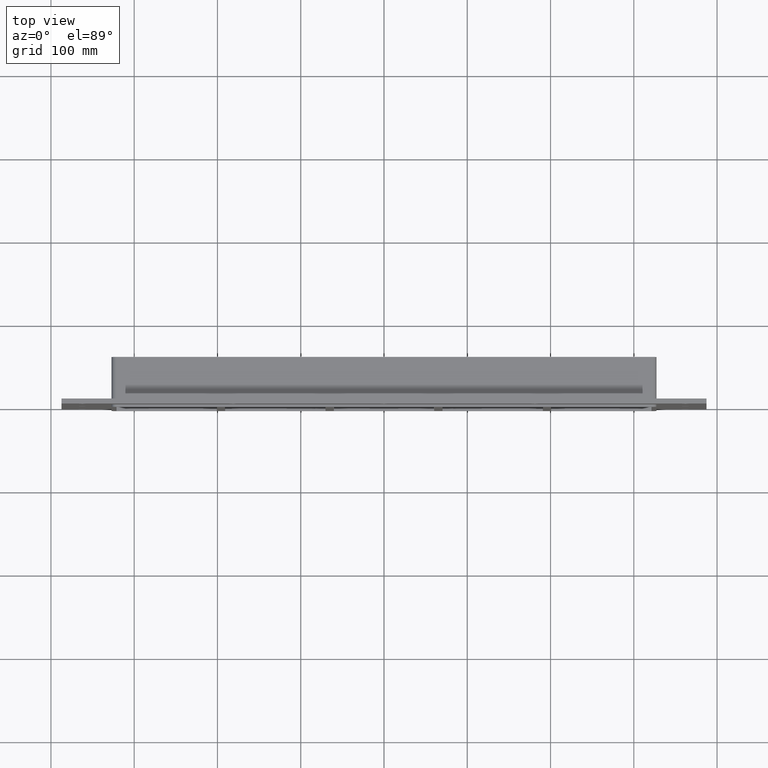
[diagram: clean part render]
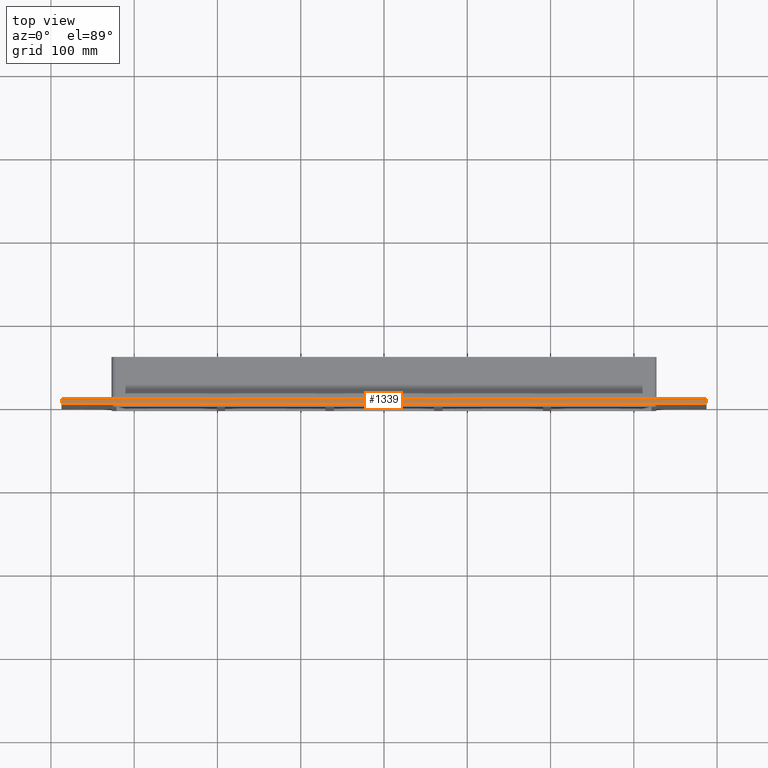
[diagram: same view with one face highlighted and labeled with its STEP entity id]
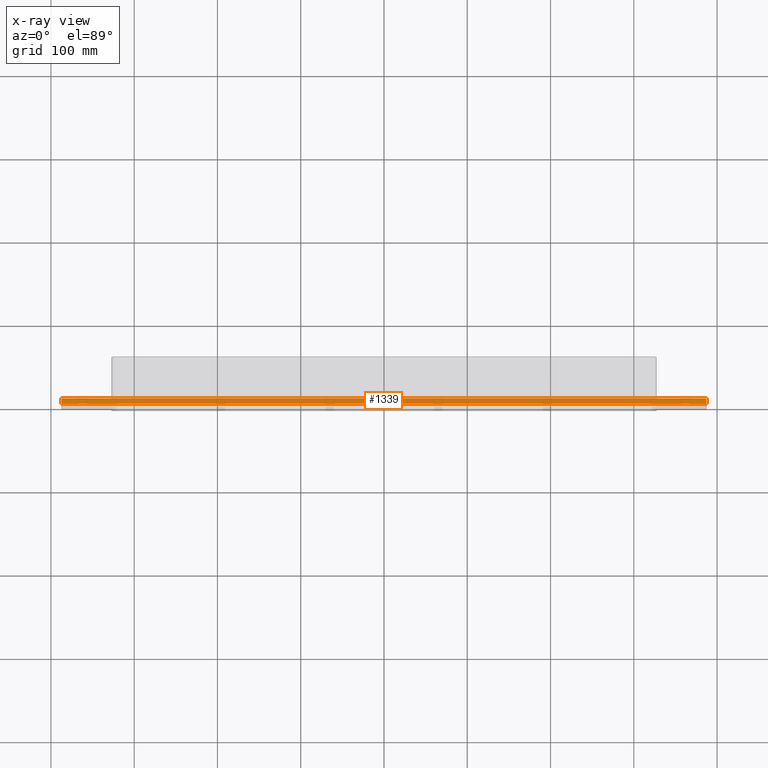
[diagram: x-ray of the same camera — body ghosted, the highlighted face saturated]
A machine part, top view. The second image highlights one B-rep face of the part: STEP entity #1339.
The next image is the same camera in x-ray: the body ghosted, the highlighted face saturated — about 0% of this face is hidden behind the body in this view.
In plain terms, the highlighted planar face has unit normal (0, 0, 1).
Its self-contained STEP definition (entity closure, byte-faithful):
#985=CARTESIAN_POINT('',(-387.25,6.000000000000001,205.00000000000003));
#986=VERTEX_POINT('',#985);
#987=CARTESIAN_POINT('',(387.25,6.000000000000001,205.00000000000003));
#988=VERTEX_POINT('',#987);
#989=CARTESIAN_POINT('',(-387.25,6.000000000000001,205.00000000000003));
#990=DIRECTION('',(1.0,0.0,0.0));
#991=VECTOR('',#990,774.5);
#992=LINE('',#989,#991);
#993=EDGE_CURVE('',#986,#988,#992,.T.);
#1131=CARTESIAN_POINT('',(-387.25,0.0,205.00000000000003));
#1132=VERTEX_POINT('',#1131);
#1133=CARTESIAN_POINT('',(387.25,0.0,205.00000000000003));
#1134=VERTEX_POINT('',#1133);
#1135=CARTESIAN_POINT('',(-387.25,0.0,205.00000000000003));
#1136=DIRECTION('',(1.0,0.0,0.0));
#1137=VECTOR('',#1136,774.5);
#1138=LINE('',#1135,#1137);
#1139=EDGE_CURVE('',#1132,#1134,#1138,.T.);
#1278=CARTESIAN_POINT('',(-387.25,0.0,205.00000000000003));
#1279=DIRECTION('',(0.0,1.0,0.0));
#1280=VECTOR('',#1279,6.000000000000001);
#1281=LINE('',#1278,#1280);
#1282=EDGE_CURVE('',#1132,#986,#1281,.T.);
#1319=CARTESIAN_POINT('',(387.25,0.0,205.00000000000003));
#1320=DIRECTION('',(0.0,1.0,0.0));
#1321=VECTOR('',#1320,6.000000000000001);
#1322=LINE('',#1319,#1321);
#1323=EDGE_CURVE('',#1134,#988,#1322,.T.);
#1328=CARTESIAN_POINT('',(-387.25,0.0,205.00000000000003));
#1329=DIRECTION('',(0.0,0.0,1.0));
#1330=DIRECTION('',(1.0,0.0,0.0));
#1331=AXIS2_PLACEMENT_3D('',#1328,#1329,#1330);
#1332=PLANE('',#1331);
#1333=ORIENTED_EDGE('',*,*,#1139,.T.);
#1334=ORIENTED_EDGE('',*,*,#1323,.T.);
#1335=ORIENTED_EDGE('',*,*,#993,.F.);
#1336=ORIENTED_EDGE('',*,*,#1282,.F.);
#1337=EDGE_LOOP('',(#1333,#1334,#1335,#1336));
#1338=FACE_OUTER_BOUND('',#1337,.T.);
#1339=ADVANCED_FACE('',(#1338),#1332,.T.);